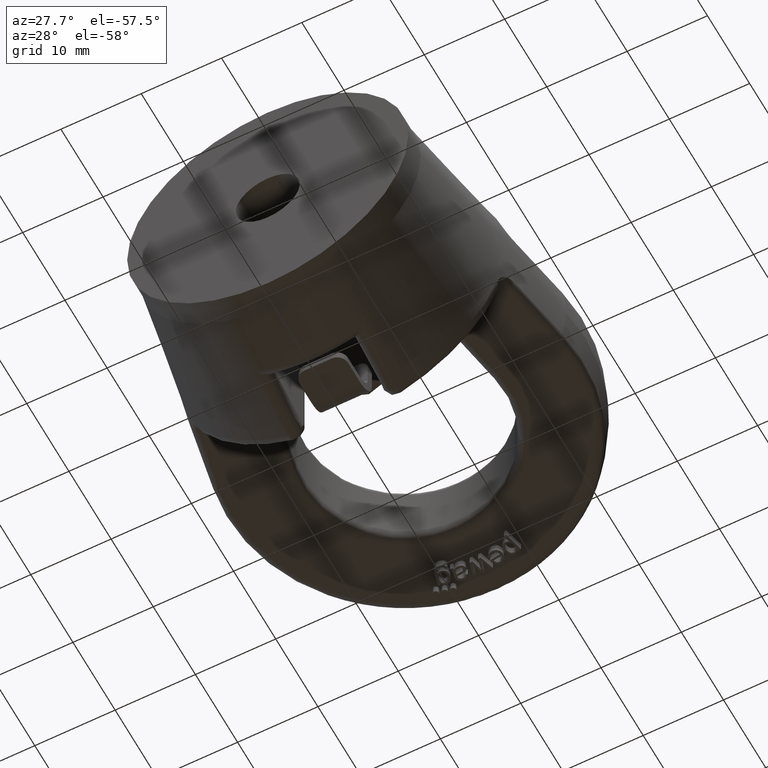
[diagram: clean part render]
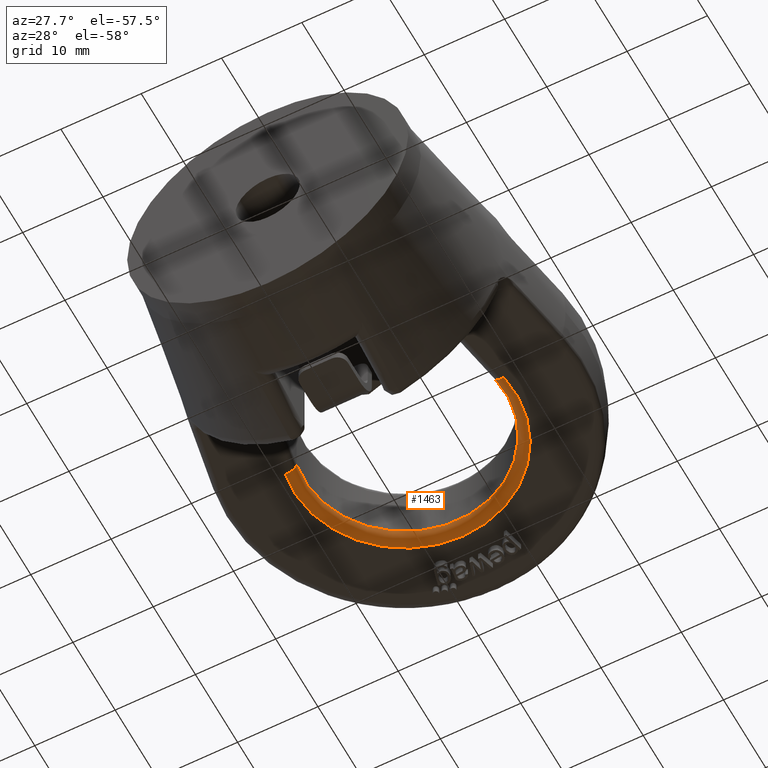
[diagram: same view with one face highlighted and labeled with its STEP entity id]
A machine part, auxiliary view. The second image highlights one B-rep face of the part: STEP entity #1463.
In plain terms, the highlighted toroidal blend (fillet) surface has major radius 13.8333 mm and minor (blend) radius 1.3333 mm.
Its self-contained STEP definition (entity closure, byte-faithful):
#1023=TOROIDAL_SURFACE('',#5276,13.8333333333333,1.33333333333333);
#1230=FACE_OUTER_BOUND('',#1997,.T.);
#1463=ADVANCED_FACE('',(#1230),#1023,.T.);
#1694=CIRCLE('',#5125,12.5);
#1724=CIRCLE('',#5236,13.8333333333333);
#1739=CIRCLE('',#5273,1.33333333333333);
#1740=CIRCLE('',#5275,1.33333333333333);
#1997=EDGE_LOOP('',(#3428,#3429,#3430,#3431));
#3428=ORIENTED_EDGE('',*,*,#4646,.T.);
#3429=ORIENTED_EDGE('',*,*,#4584,.F.);
#3430=ORIENTED_EDGE('',*,*,#4647,.F.);
#3431=ORIENTED_EDGE('',*,*,#4348,.F.);
#3957=VERTEX_POINT('',#6730);
#3960=VERTEX_POINT('',#6735);
#4105=VERTEX_POINT('',#8265);
#4106=VERTEX_POINT('',#8266);
#4348=EDGE_CURVE('',#3960,#3957,#1694,.T.);
#4584=EDGE_CURVE('',#4105,#4106,#1724,.T.);
#4646=EDGE_CURVE('',#3960,#4106,#1739,.T.);
#4647=EDGE_CURVE('',#3957,#4105,#1740,.T.);
#5125=AXIS2_PLACEMENT_3D('',#6736,#5462,#5463);
#5236=AXIS2_PLACEMENT_3D('',#8264,#5821,#5822);
#5273=AXIS2_PLACEMENT_3D('',#8732,#5916,#5917);
#5275=AXIS2_PLACEMENT_3D('',#8734,#5920,#5921);
#5276=AXIS2_PLACEMENT_3D('',#8735,#5922,#5923);
#5462=DIRECTION('',(2.34291072916505E-15,1.31989829693887E-16,-1.));
#5463=DIRECTION('',(-3.69778549322349E-31,1.,1.38777878078145E-16));
#5821=DIRECTION('',(-2.34291072916505E-15,-1.31989829693887E-16,1.));
#5822=DIRECTION('',(-3.34137243363568E-31,1.,1.25401697058564E-16));
#5916=DIRECTION('',(-0.179081367352328,0.983834266463219,-1.86579167921235E-16));
#5917=DIRECTION('',(0.983834266463219,0.179081367352328,2.27682456221956E-15));
#5920=DIRECTION('',(-0.179081367352328,-0.983834266463219,-1.86579167921235E-16));
#5921=DIRECTION('',(-0.983834266463219,0.179081367352328,-2.27682456221956E-15));
#5922=DIRECTION('',(-2.34291072916505E-15,-1.31989829693887E-16,1.));
#5923=DIRECTION('',(-3.04762540650288E-31,1.,1.42971715053034E-16));
#6730=CARTESIAN_POINT('',(12.2979283307903,30.2614829080959,-3.66666666666665));
#6735=CARTESIAN_POINT('',(-12.2979283307902,30.2614829080959,-3.6666666666667));
#6736=CARTESIAN_POINT('',(8.55869227404314E-15,32.5,-3.66666666666667));
#8264=CARTESIAN_POINT('',(1.16825732462632E-14,32.5,-5.));
#8265=CARTESIAN_POINT('',(13.6097073527412,30.0227077516261,-4.99999999999997));
#8266=CARTESIAN_POINT('',(-13.6097073527412,30.0227077516261,-5.00000000000004));
#8732=CARTESIAN_POINT('',(-13.6097073527412,30.0227077516261,-3.6666666666667));
#8734=CARTESIAN_POINT('',(13.6097073527412,30.0227077516261,-3.66666666666664));
#8735=CARTESIAN_POINT('',(8.55869227404314E-15,32.5,-3.66666666666667));